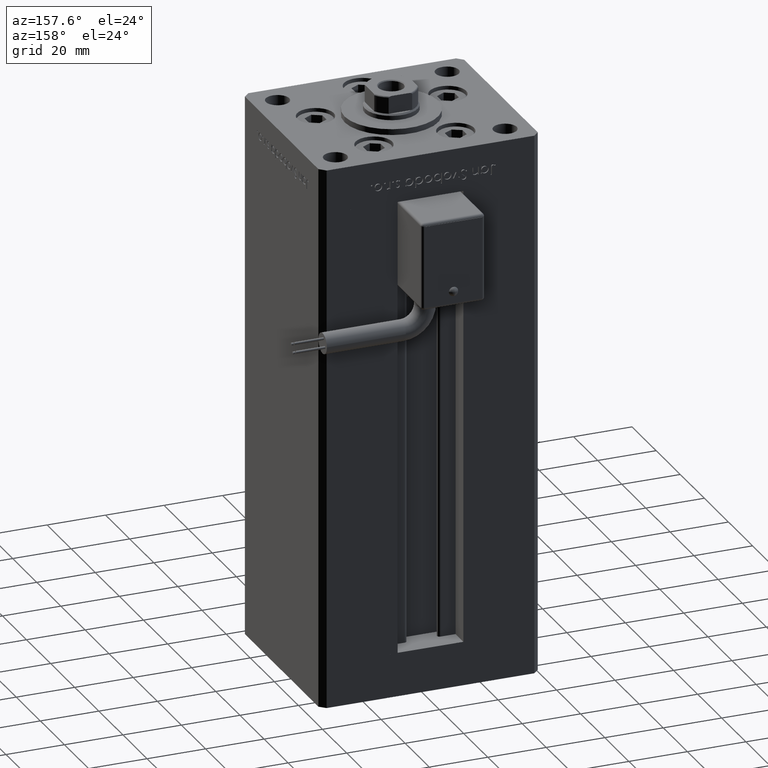
[diagram: clean part render]
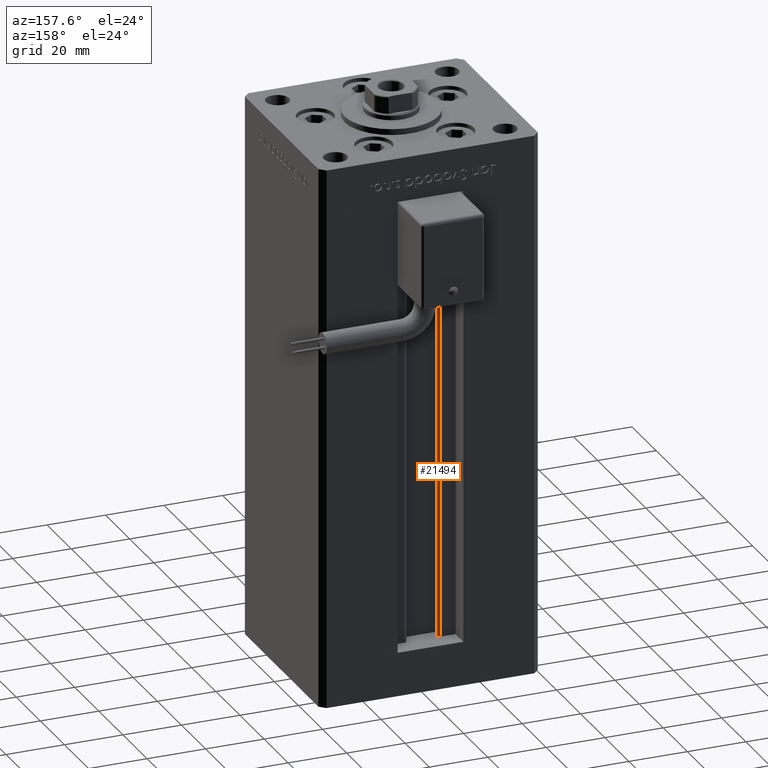
[diagram: same view with one face highlighted and labeled with its STEP entity id]
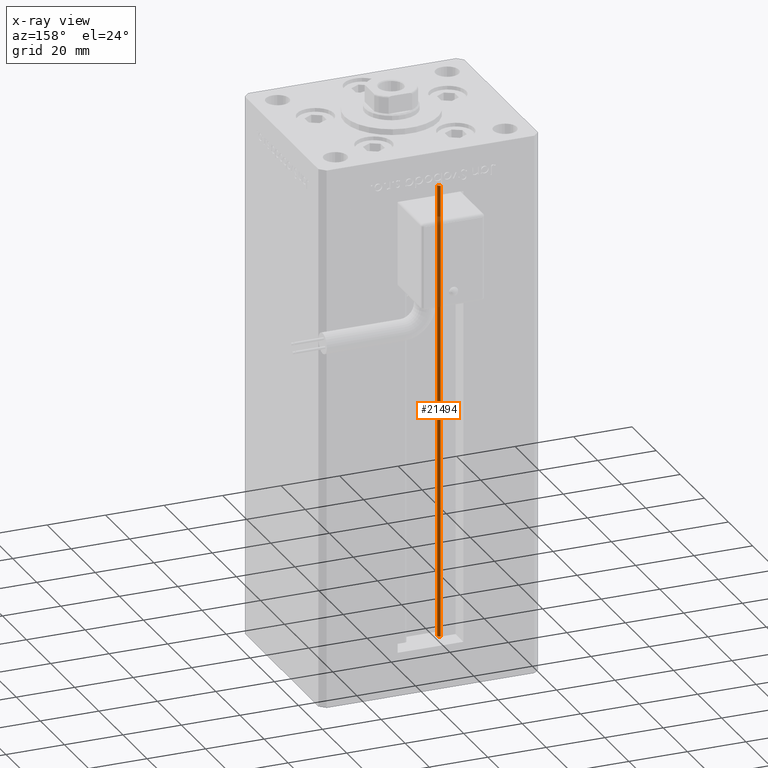
[diagram: x-ray of the same camera — body ghosted, the highlighted face saturated]
A machine part, auxiliary view. The second image highlights one B-rep face of the part: STEP entity #21494.
The next image is the same camera in x-ray: the body ghosted, the highlighted face saturated — about 20% of this face is hidden behind the body in this view.
In plain terms, the highlighted cylindrical surface (edge-blend (fillet) strip) has radius 0.9333 mm, axis along (0, 0, 1).
Its self-contained STEP definition (entity closure, byte-faithful):
#2458 = CARTESIAN_POINT ( 'NONE',  ( -5.250000000000000000, 25.06666666666599141, 0.000000000000000000 ) ) ;
#3565 = DIRECTION ( 'NONE',  ( -0.000000000000000000, -0.000000000000000000, 1.000000000000000000 ) ) ;
#4558 = CARTESIAN_POINT ( 'NONE',  ( -6.183333333334001480, 25.06666666666599141, 0.000000000000000000 ) ) ;
#6177 = EDGE_LOOP ( 'NONE', ( #8413, #25485, #26609, #30434 ) ) ;
#6226 = DIRECTION ( 'NONE',  ( 0.000000000000000000, 0.000000000000000000, -1.000000000000000000 ) ) ;
#6574 = VERTEX_POINT ( 'NONE', #34836 ) ;
#8036 = DIRECTION ( 'NONE',  ( 1.000000000000000000, 0.000000000000000000, 0.000000000000000000 ) ) ;
#8413 = ORIENTED_EDGE ( 'NONE', *, *, #30086, .F. ) ;
#8747 = CYLINDRICAL_SURFACE ( 'NONE', #9758, 0.9333333333340008142 ) ;
#9758 = AXIS2_PLACEMENT_3D ( 'NONE', #4558, #21548, #38591 ) ;
#12211 = DIRECTION ( 'NONE',  ( -0.000000000000000000, -0.000000000000000000, -1.000000000000000000 ) ) ;
#12267 = VERTEX_POINT ( 'NONE', #47248 ) ;
#14562 = DIRECTION ( 'NONE',  ( 1.000000000000000000, 0.000000000000000000, 0.000000000000000000 ) ) ;
#15485 = LINE ( 'NONE', #45909, #43092 ) ;
#16359 = CARTESIAN_POINT ( 'NONE',  ( -5.250000000000000000, 25.06666666666599141, 0.000000000000000000 ) ) ;
#17012 = VECTOR ( 'NONE', #3565, 1000.000000000000000 ) ;
#21276 = FACE_OUTER_BOUND ( 'NONE', #6177, .T. ) ;
#21494 = ADVANCED_FACE ( 'NONE', ( #21276 ), #8747, .T. ) ;
#21548 = DIRECTION ( 'NONE',  ( -0.000000000000000000, -0.000000000000000000, 1.000000000000000000 ) ) ;
#23322 = EDGE_CURVE ( 'NONE', #12267, #26844, #32935, .T. ) ;
#25485 = ORIENTED_EDGE ( 'NONE', *, *, #33979, .F. ) ;
#26609 = ORIENTED_EDGE ( 'NONE', *, *, #51699, .T. ) ;
#26844 = VERTEX_POINT ( 'NONE', #52430 ) ;
#30086 = EDGE_CURVE ( 'NONE', #54554, #26844, #50944, .T. ) ;
#30434 = ORIENTED_EDGE ( 'NONE', *, *, #23322, .T. ) ;
#32935 = CIRCLE ( 'NONE', #34724, 0.9333333333340008142 ) ;
#33979 = EDGE_CURVE ( 'NONE', #6574, #54554, #50993, .T. ) ;
#34724 = AXIS2_PLACEMENT_3D ( 'NONE', #53081, #6226, #14562 ) ;
#34836 = CARTESIAN_POINT ( 'NONE',  ( -6.183333333334001480, 25.99999999999999289, 0.000000000000000000 ) ) ;
#38591 = DIRECTION ( 'NONE',  ( 1.000000000000000000, 0.000000000000000000, 0.000000000000000000 ) ) ;
#39414 = AXIS2_PLACEMENT_3D ( 'NONE', #46259, #12211, #8036 ) ;
#43092 = VECTOR ( 'NONE', #45633, 1000.000000000000000 ) ;
#45633 = DIRECTION ( 'NONE',  ( -0.000000000000000000, -0.000000000000000000, 1.000000000000000000 ) ) ;
#45909 = CARTESIAN_POINT ( 'NONE',  ( -6.183333333334001480, 25.99999999999999289, 0.000000000000000000 ) ) ;
#46259 = CARTESIAN_POINT ( 'NONE',  ( -6.183333333334001480, 25.06666666666599141, 0.000000000000000000 ) ) ;
#47248 = CARTESIAN_POINT ( 'NONE',  ( -6.183333333334001480, 25.99999999999999289, 156.0000000000000000 ) ) ;
#50944 = LINE ( 'NONE', #16359, #17012 ) ;
#50993 = CIRCLE ( 'NONE', #39414, 0.9333333333340008142 ) ;
#51699 = EDGE_CURVE ( 'NONE', #6574, #12267, #15485, .T. ) ;
#52430 = CARTESIAN_POINT ( 'NONE',  ( -5.250000000000000000, 25.06666666666599141, 156.0000000000000000 ) ) ;
#53081 = CARTESIAN_POINT ( 'NONE',  ( -6.183333333334001480, 25.06666666666599141, 156.0000000000000000 ) ) ;
#54554 = VERTEX_POINT ( 'NONE', #2458 ) ;